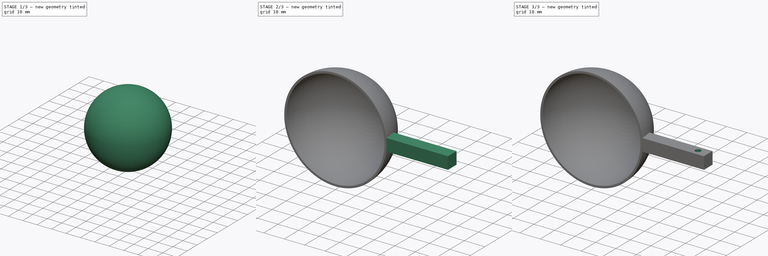
[diagram: build sequence overview — one tinted view per stage of 3, left to right]
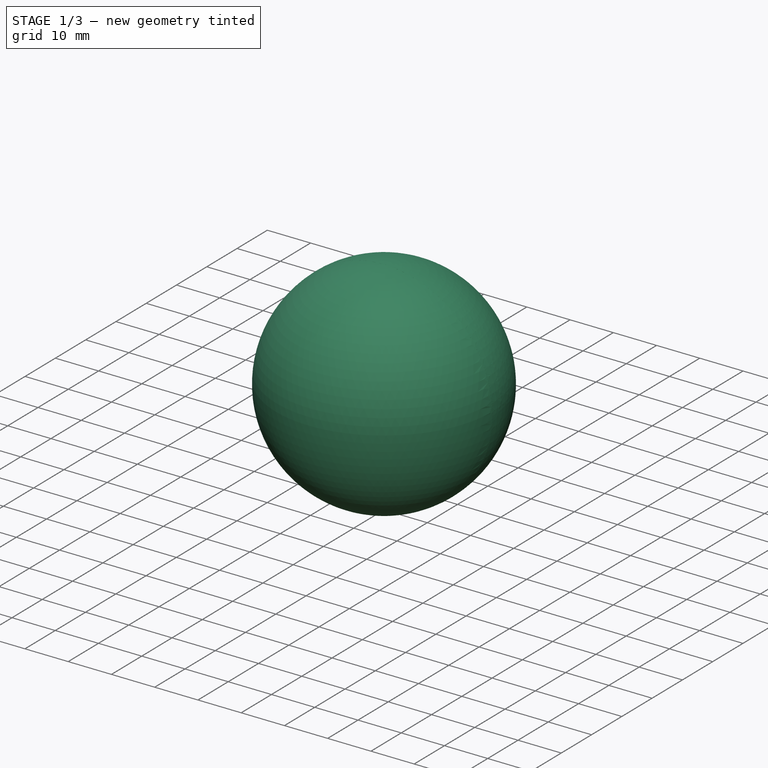
[diagram: stage 1 of 3 — iso view after this stage's code; geometry added in this stage tinted green]
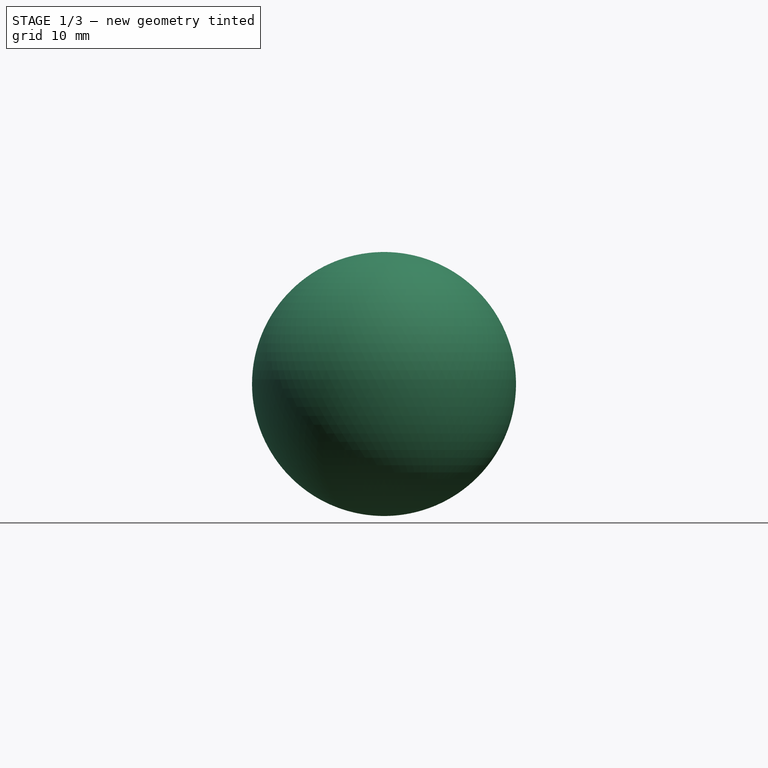
[diagram: stage 1 of 3 — front view after this stage's code; geometry added in this stage tinted green]
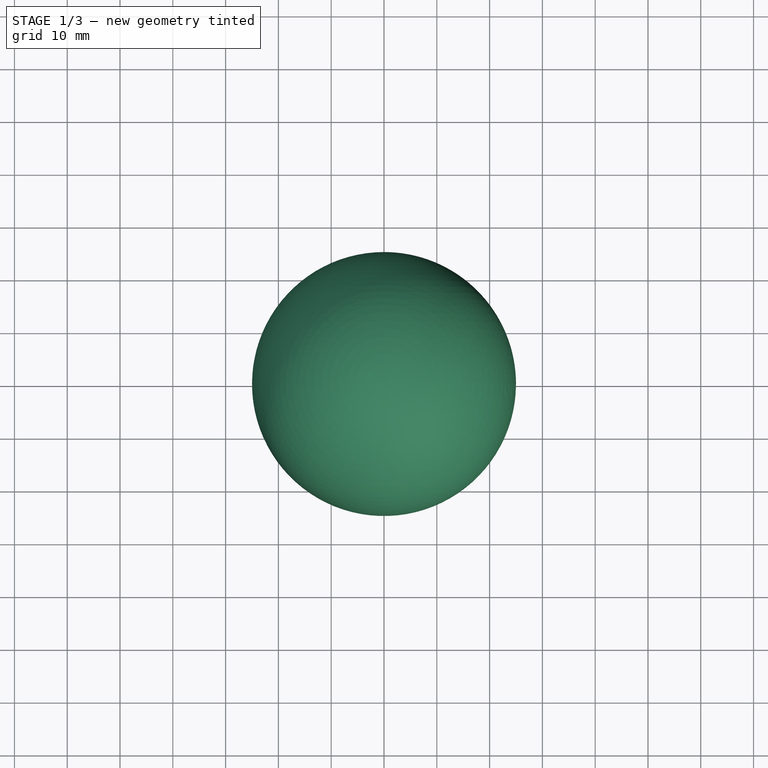
[diagram: stage 1 of 3 — top view after this stage's code; geometry added in this stage tinted green]
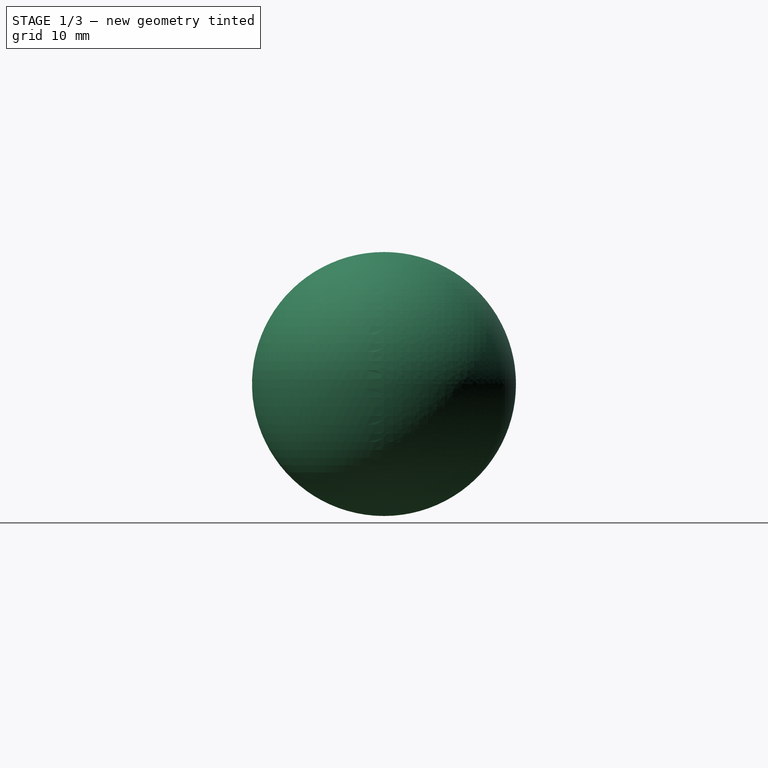
[diagram: stage 1 of 3 — right view after this stage's code; geometry added in this stage tinted green]
FCSTD DOCUMENT  (FreeCAD 0.16R6712 (Git))
Label: windCup
License: All rights reserved
LicenseURL: http://en.wikipedia.org/wiki/All_rights_reserved
objects: Sketcher::SketchObject×3, PartDesign::Pad×1, Part::Sphere×1, Part::Cut×1, PartDesign::Revolution×1, Part::Fuse×1, PartDesign::Pocket×1, PartDesign::Chamfer×1
note: 13 computed .brp shape members not serialized (recipe doc carries the construction recipe); baked Part::Feature solids carry a one-line shape summary decoded from their .brp

FEATURE [Part::Sphere] Sphere
  Angle1 = -90
  Angle2 = 90
  Angle3 = 360
  Radius = 25
FEATURE [Sketcher::SketchObject] Sketch001
  sketch-geometry (4):
    g0: ArcOfCircle CenterX=0 CenterY=0 CenterZ=0 NormalX=0 NormalY=0 NormalZ=1 Radius=25 StartAngle=0 EndAngle=1.5708
    g1: ArcOfCircle CenterX=0 CenterY=0 CenterZ=0 NormalX=0 NormalY=0 NormalZ=1 Radius=24 StartAngle=0 EndAngle=1.5708
    g2: LineSegment StartX=0 StartY=25 StartZ=0 EndX=0 EndY=24 EndZ=0
    g3: LineSegment StartX=24 StartY=0 StartZ=0 EndX=25 EndY=0 EndZ=0
  constraints (12):
    c: Coincident(g0,g-1)
    c: Coincident(g1,g-1)
    c: Radius(g0) = 25
    c: Radius(g1) = 24
    c: Vertical(g2)
    c: Horizontal(g3)
    c: Coincident(g0,g3)
    c: Coincident(g0,g2)
    c: Coincident(g1,g3)
    c: Coincident(g1,g2)
    c: PointOnObject(g0,g-2)
    c: PointOnObject(g0,g-1)
FEATURE [PartDesign::Revolution] Revolution
  Angle = 360
  Axis = (0,1,0)
  Base = (0,0,0)
  ReferenceAxis = -> Sketch001 [V_Axis]
  Reversed = true
  Sketch = -> Sketch001
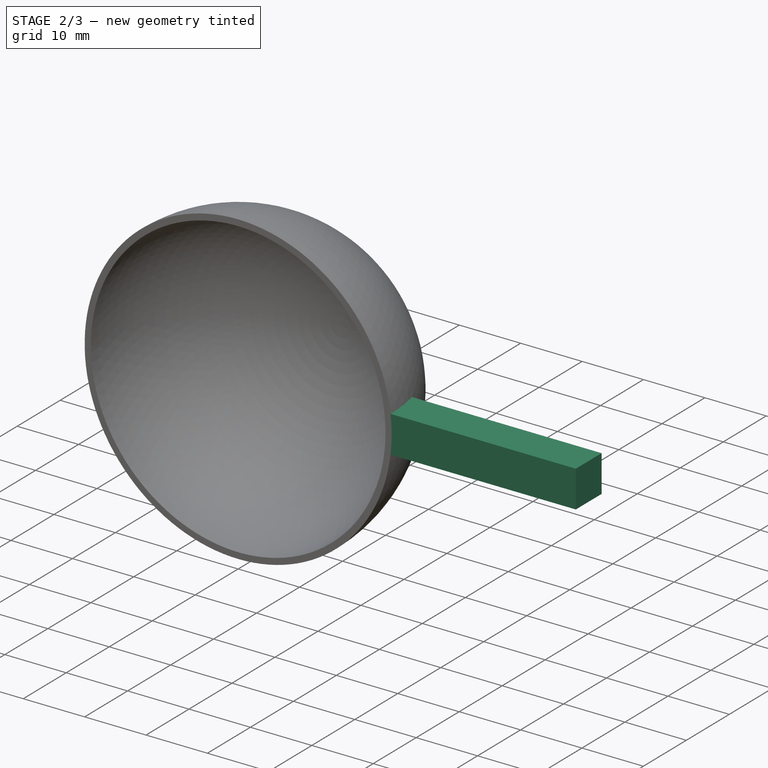
[diagram: stage 2 of 3 — iso view after this stage's code; geometry added in this stage tinted green]
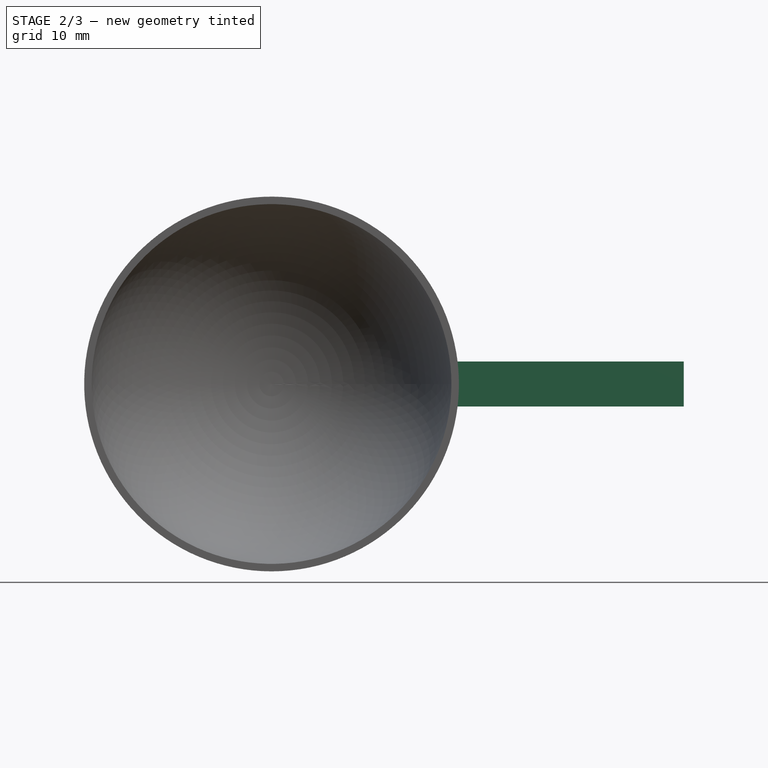
[diagram: stage 2 of 3 — front view after this stage's code; geometry added in this stage tinted green]
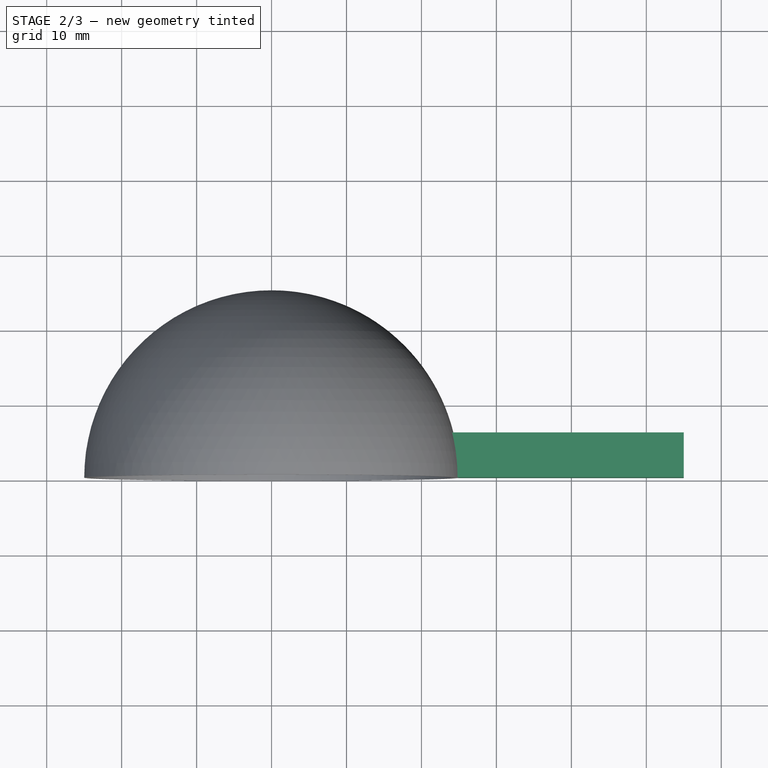
[diagram: stage 2 of 3 — top view after this stage's code; geometry added in this stage tinted green]
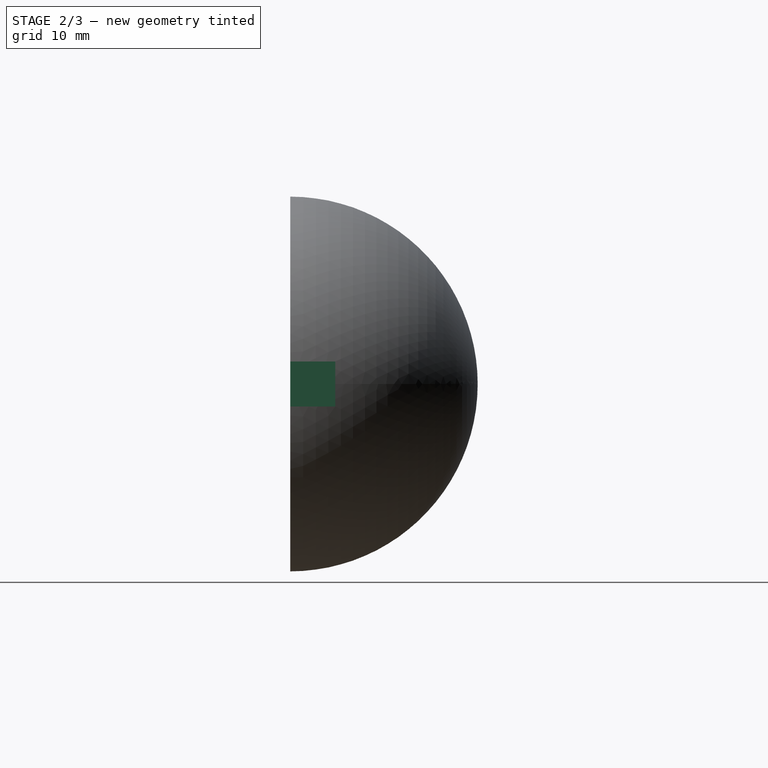
[diagram: stage 2 of 3 — right view after this stage's code; geometry added in this stage tinted green]
FEATURE [Sketcher::SketchObject] Sketch
  sketch-geometry (5):
    g0: LineSegment StartX=14.5736 StartY=6 StartZ=0 EndX=55 EndY=6 EndZ=0
    g1: LineSegment StartX=55 StartY=6 StartZ=0 EndX=55 EndY=0 EndZ=0
    g2: LineSegment StartX=55 StartY=0 StartZ=0 EndX=14.5736 EndY=0 EndZ=0
    g3: LineSegment StartX=14.5736 StartY=0 StartZ=0 EndX=14.5736 EndY=6 EndZ=0
    g4: GeomPoint [constr] X=25 Y=0 Z=0
  constraints (13):
    c: Coincident(g0,g1)
    c: Coincident(g1,g2)
    c: Coincident(g2,g3)
    c: Coincident(g3,g0)
    c: Horizontal(g0)
    c: Horizontal(g2)
    c: Vertical(g1)
    c: Vertical(g3)
    c: DistanceY(g1,g1) = 6
    c: PointOnObject(g1,g-1)
    c: PointOnObject(g4,g2)
    c: DistanceX(g-1,g4) = 25
    c: DistanceX(g4,g1) = 30
FEATURE [PartDesign::Pad] Pad
  Length = 6
  Length2 = 100
  Midplane = true
  Sketch = -> Sketch
  Type = 0
FEATURE [Part::Cut] Cut
  Base = -> Pad
  Tool = -> Sphere
FEATURE [Part::Fuse] Fusion
  Base = -> Cut
  Tool = -> Revolution
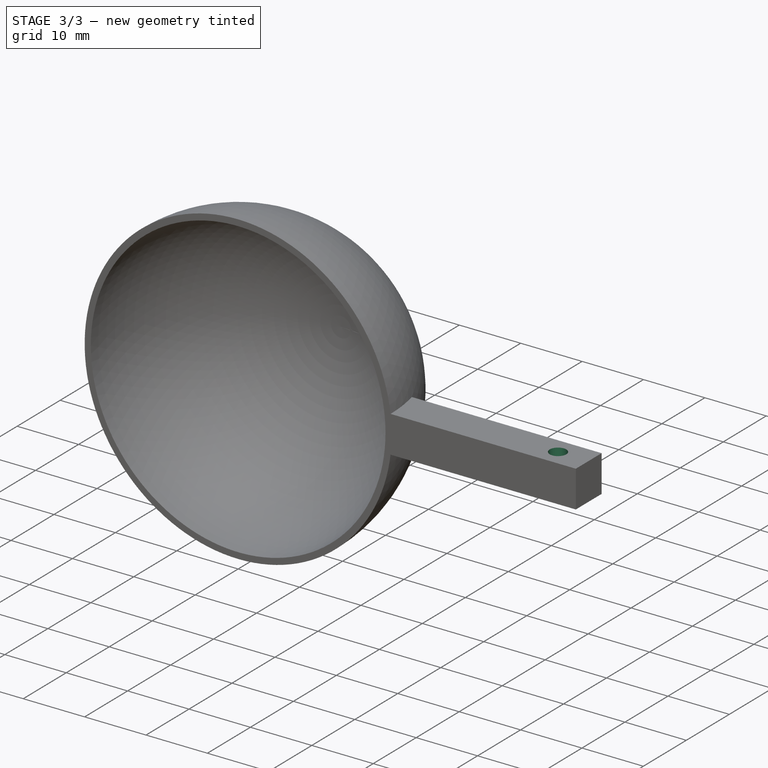
[diagram: stage 3 of 3 — iso view after this stage's code; geometry added in this stage tinted green]
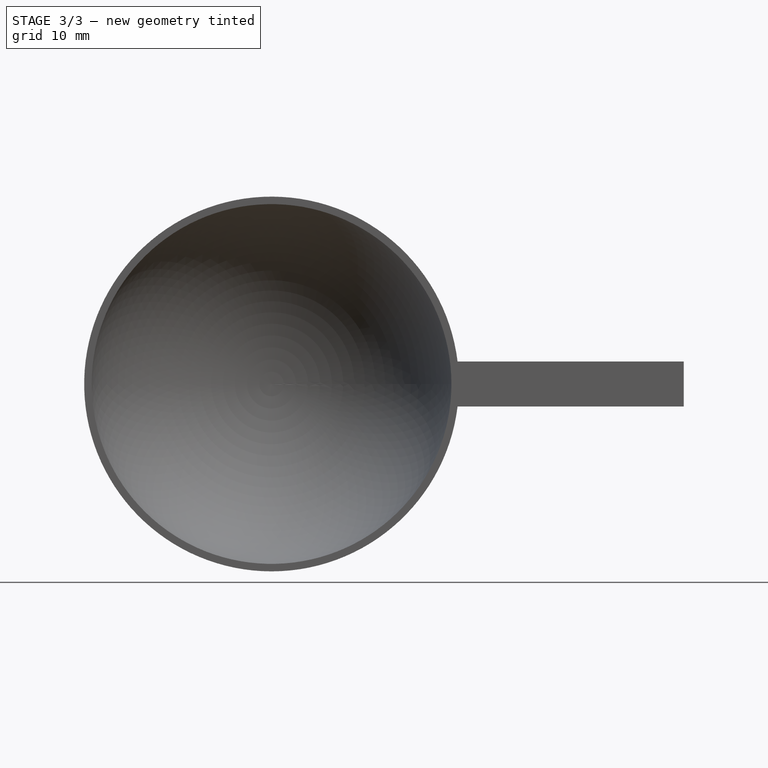
[diagram: stage 3 of 3 — front view after this stage's code; geometry added in this stage tinted green]
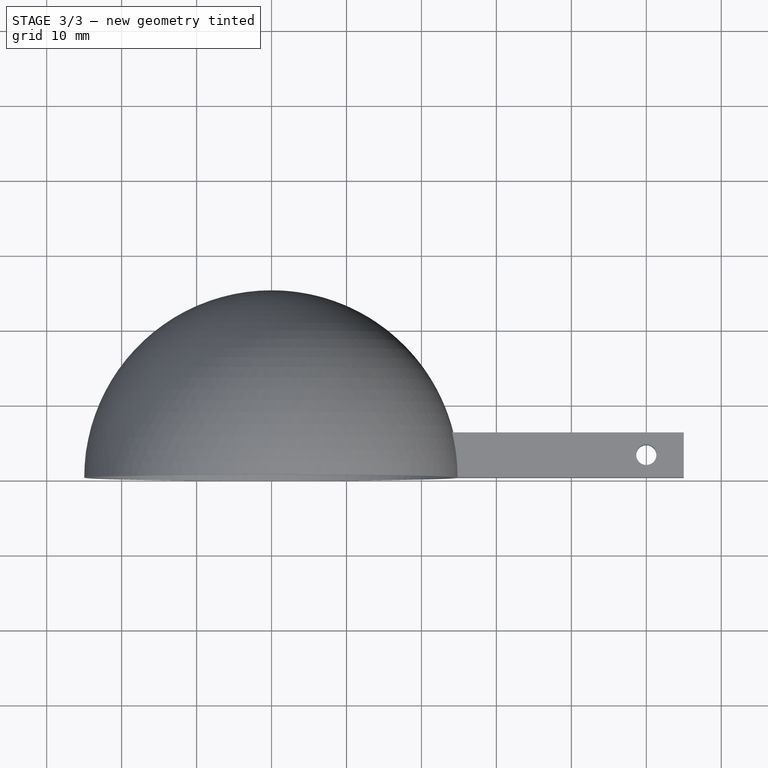
[diagram: stage 3 of 3 — top view after this stage's code; geometry added in this stage tinted green]
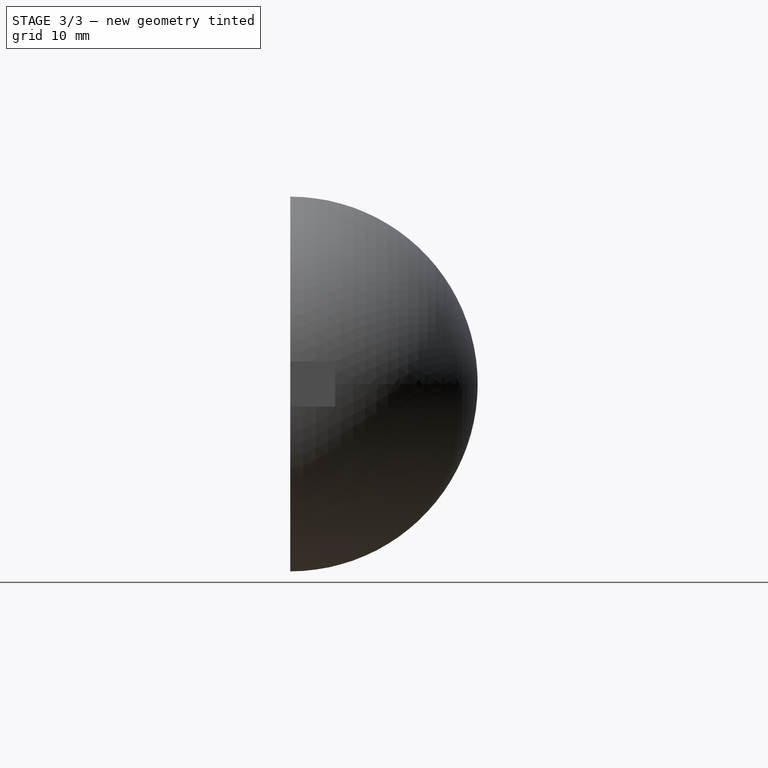
[diagram: stage 3 of 3 — right view after this stage's code; geometry added in this stage tinted green]
FEATURE [Sketcher::SketchObject] Sketch002
  Placement = pos=(0,0,-3) rot=(1,0,0;3.14159rad)
  Support = -> Fusion [Face5]
  sketch-geometry (1):
    g0: Circle CenterX=50 CenterY=-3 CenterZ=0 NormalX=0 NormalY=0 NormalZ=1 Radius=1.35
  constraints (3):
    c: Radius(g0) = 1.35
    c: DistanceX(g-1,g0) = 50
    c: DistanceY(g0,g-1) = 3
FEATURE [PartDesign::Pocket] Pocket
  Length = 6
  Sketch = -> Sketch002
  Type = 0
FEATURE [PartDesign::Chamfer] Chamfer
  Base = -> Pocket [Edge18]
  Size = 1
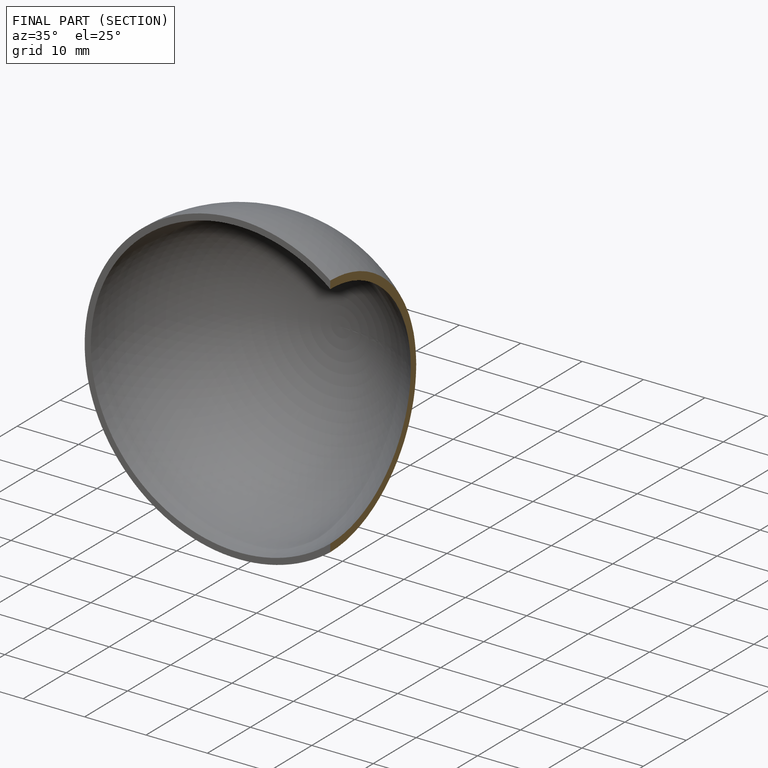
[diagram: finished part — half-section view (interior)]
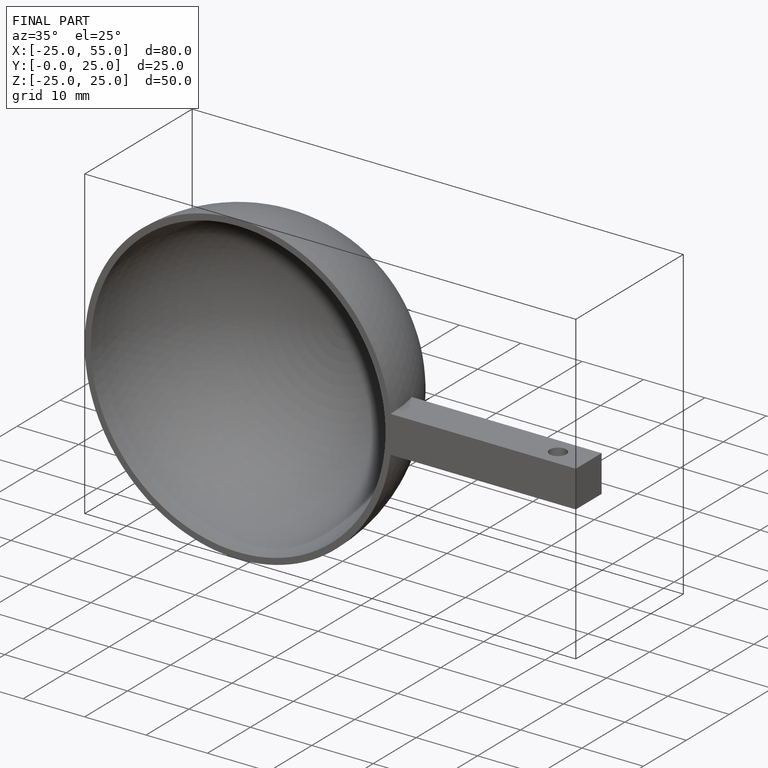
[diagram: finished part — iso view with bounding-box wireframe]
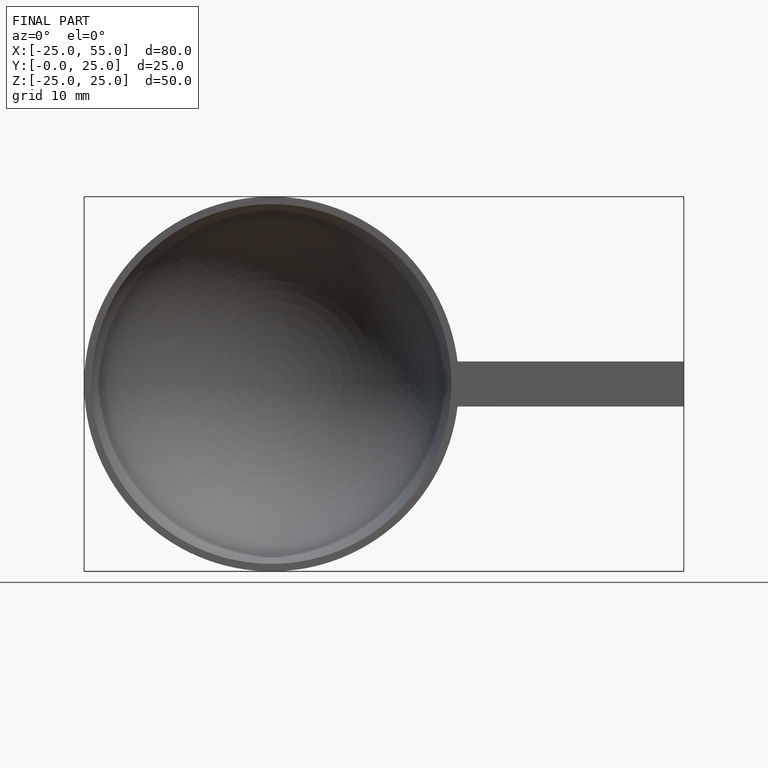
[diagram: finished part — front view with bounding-box wireframe]
